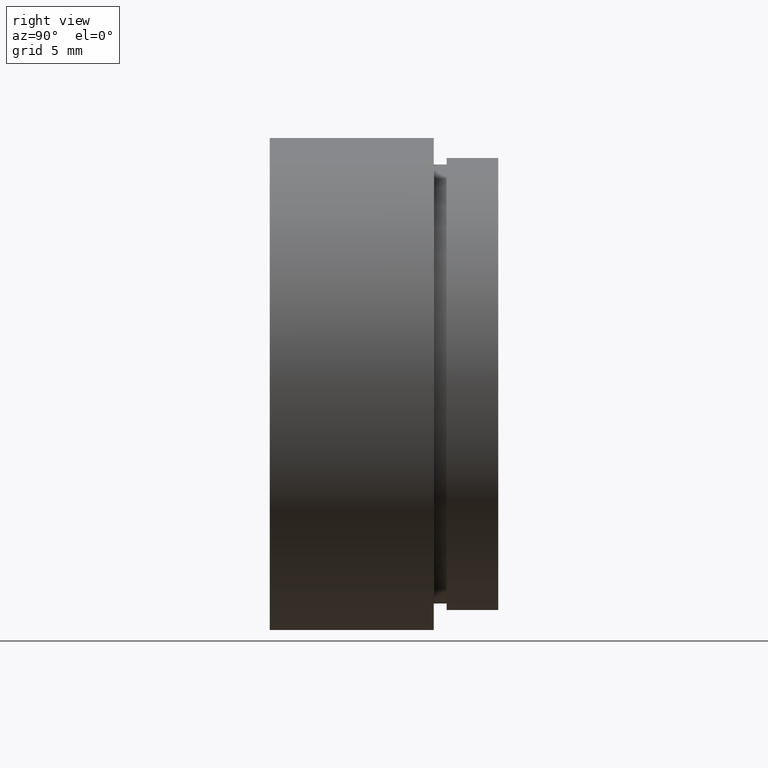
[diagram: clean part render]
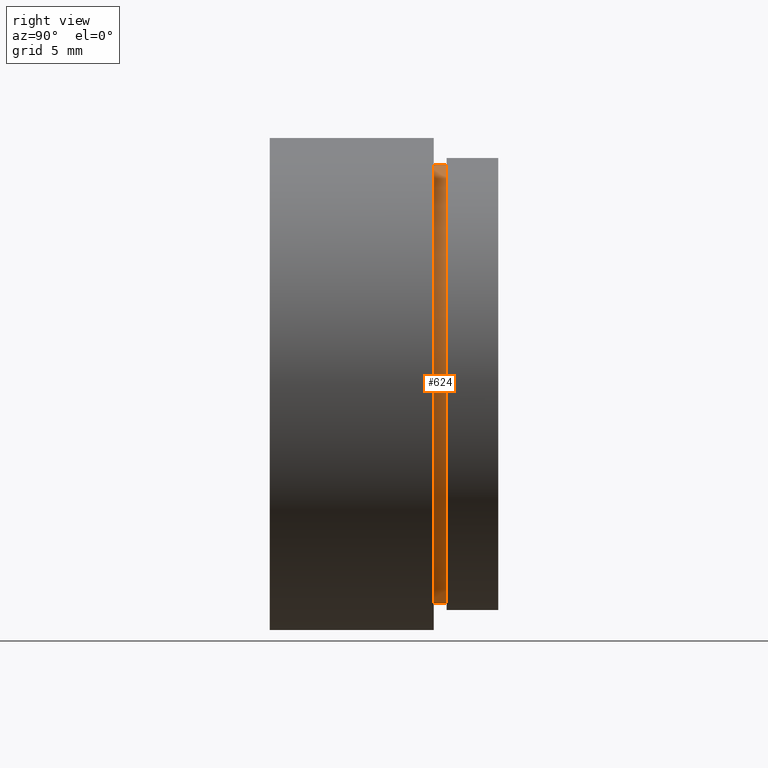
[diagram: same view with one face highlighted and labeled with its STEP entity id]
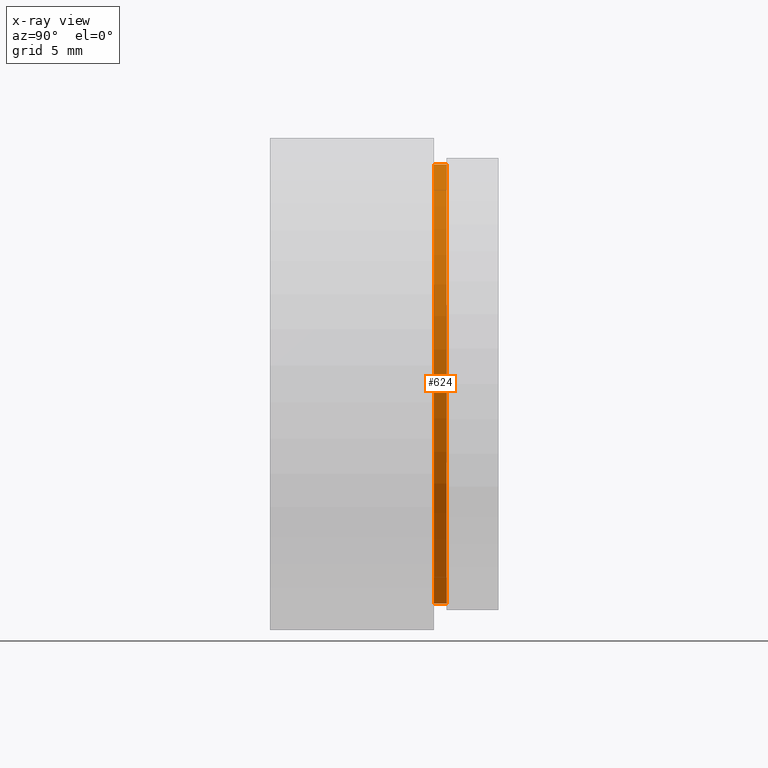
[diagram: x-ray of the same camera — body ghosted, the highlighted face saturated]
A machine part, right view. The second image highlights one B-rep face of the part: STEP entity #624.
The next image is the same camera in x-ray: the body ghosted, the highlighted face saturated — about 0% of this face is hidden behind the body in this view.
In plain terms, the highlighted cylindrical surface (partial cylindrical patch) has radius 17 mm, axis along (-0, 1, -0).
Its self-contained STEP definition (entity closure, byte-faithful):
#42 = CARTESIAN_POINT ( 'NONE',  ( 2.081899558550502600E-015, 161.3761669434274500, -17.00000000000001800 ) ) ;
#44 = AXIS2_PLACEMENT_3D ( 'NONE', #572, #284, #379 ) ;
#51 = CARTESIAN_POINT ( 'NONE',  ( 0.0000000000000000000, 13.69999999999999000, 17.00000000000001800 ) ) ;
#56 = CARTESIAN_POINT ( 'NONE',  ( 0.0000000000000000000, 13.69999999999999000, 0.0000000000000000000 ) ) ;
#76 = EDGE_CURVE ( 'NONE', #605, #503, #413, .T. ) ;
#82 = ORIENTED_EDGE ( 'NONE', *, *, #272, .T. ) ;
#123 = DIRECTION ( 'NONE',  ( -0.0000000000000000000, 1.000000000000000000, -0.0000000000000000000 ) ) ;
#150 = EDGE_CURVE ( 'NONE', #605, #621, #541, .T. ) ;
#158 = CARTESIAN_POINT ( 'NONE',  ( 0.0000000000000000000, 12.69999999999998900, 0.0000000000000000000 ) ) ;
#163 = CARTESIAN_POINT ( 'NONE',  ( 0.0000000000000000000, 161.3761669434274500, 17.00000000000001800 ) ) ;
#195 = FACE_OUTER_BOUND ( 'NONE', #255, .T. ) ;
#225 = VERTEX_POINT ( 'NONE', #276 ) ;
#250 = CARTESIAN_POINT ( 'NONE',  ( 0.0000000000000000000, 12.69999999999998900, 17.00000000000001800 ) ) ;
#255 = EDGE_LOOP ( 'NONE', ( #530, #82, #316, #596 ) ) ;
#272 = EDGE_CURVE ( 'NONE', #621, #225, #600, .T. ) ;
#274 = DIRECTION ( 'NONE',  ( -0.0000000000000000000, 1.000000000000000000, -0.0000000000000000000 ) ) ;
#276 = CARTESIAN_POINT ( 'NONE',  ( 2.081899558550502600E-015, 13.69999999999999000, -17.00000000000001800 ) ) ;
#284 = DIRECTION ( 'NONE',  ( -0.0000000000000000000, 1.000000000000000000, -0.0000000000000000000 ) ) ;
#305 = DIRECTION ( 'NONE',  ( -0.0000000000000000000, 1.000000000000000000, -0.0000000000000000000 ) ) ;
#316 = ORIENTED_EDGE ( 'NONE', *, *, #428, .F. ) ;
#379 = DIRECTION ( 'NONE',  ( 0.0000000000000000000, 0.0000000000000000000, 1.000000000000000000 ) ) ;
#380 = AXIS2_PLACEMENT_3D ( 'NONE', #158, #123, #447 ) ;
#382 = DIRECTION ( 'NONE',  ( -0.0000000000000000000, 1.000000000000000000, -0.0000000000000000000 ) ) ;
#413 = LINE ( 'NONE', #163, #460 ) ;
#428 = EDGE_CURVE ( 'NONE', #503, #225, #432, .T. ) ;
#432 = CIRCLE ( 'NONE', #551, 17.00000000000001800 ) ;
#447 = DIRECTION ( 'NONE',  ( 0.0000000000000000000, 0.0000000000000000000, 1.000000000000000000 ) ) ;
#460 = VECTOR ( 'NONE', #305, 1000.000000000000000 ) ;
#464 = VECTOR ( 'NONE', #274, 1000.000000000000000 ) ;
#503 = VERTEX_POINT ( 'NONE', #51 ) ;
#517 = DIRECTION ( 'NONE',  ( 0.0000000000000000000, 0.0000000000000000000, 1.000000000000000000 ) ) ;
#530 = ORIENTED_EDGE ( 'NONE', *, *, #150, .T. ) ;
#541 = CIRCLE ( 'NONE', #380, 17.00000000000001800 ) ;
#551 = AXIS2_PLACEMENT_3D ( 'NONE', #56, #382, #517 ) ;
#552 = CYLINDRICAL_SURFACE ( 'NONE', #44, 17.00000000000001800 ) ;
#572 = CARTESIAN_POINT ( 'NONE',  ( 0.0000000000000000000, 161.3761669434274500, 0.0000000000000000000 ) ) ;
#578 = CARTESIAN_POINT ( 'NONE',  ( 2.081899558550502600E-015, 12.69999999999998900, -17.00000000000001800 ) ) ;
#596 = ORIENTED_EDGE ( 'NONE', *, *, #76, .F. ) ;
#600 = LINE ( 'NONE', #42, #464 ) ;
#605 = VERTEX_POINT ( 'NONE', #250 ) ;
#621 = VERTEX_POINT ( 'NONE', #578 ) ;
#624 = ADVANCED_FACE ( 'NONE', ( #195 ), #552, .T. ) ;